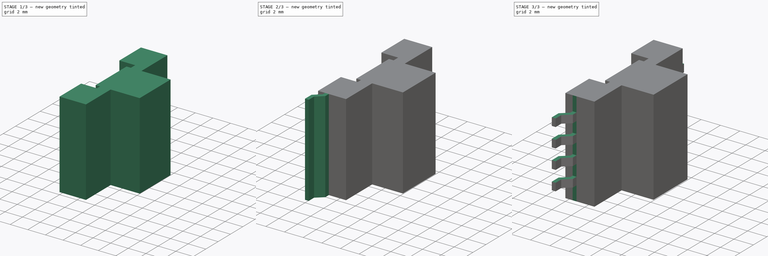
[diagram: build sequence overview — one tinted view per stage of 3, left to right]
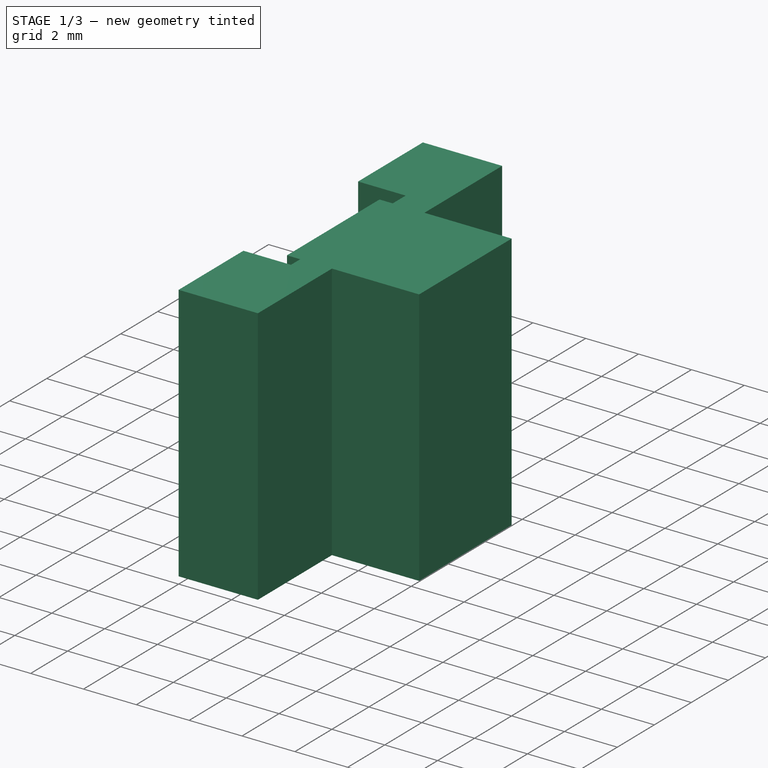
[diagram: stage 1 of 3 — iso view after this stage's code; geometry added in this stage tinted green]
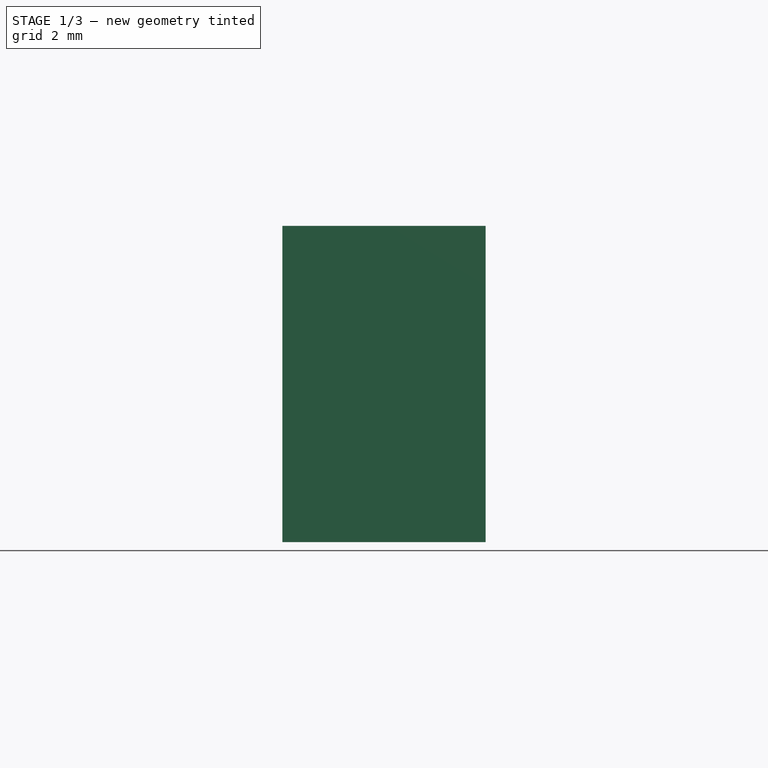
[diagram: stage 1 of 3 — front view after this stage's code; geometry added in this stage tinted green]
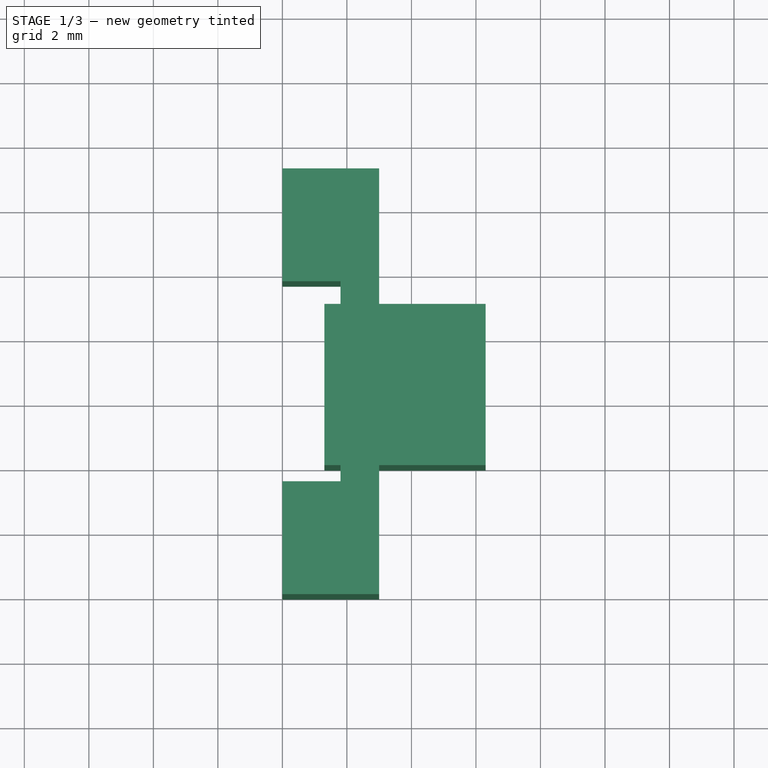
[diagram: stage 1 of 3 — top view after this stage's code; geometry added in this stage tinted green]
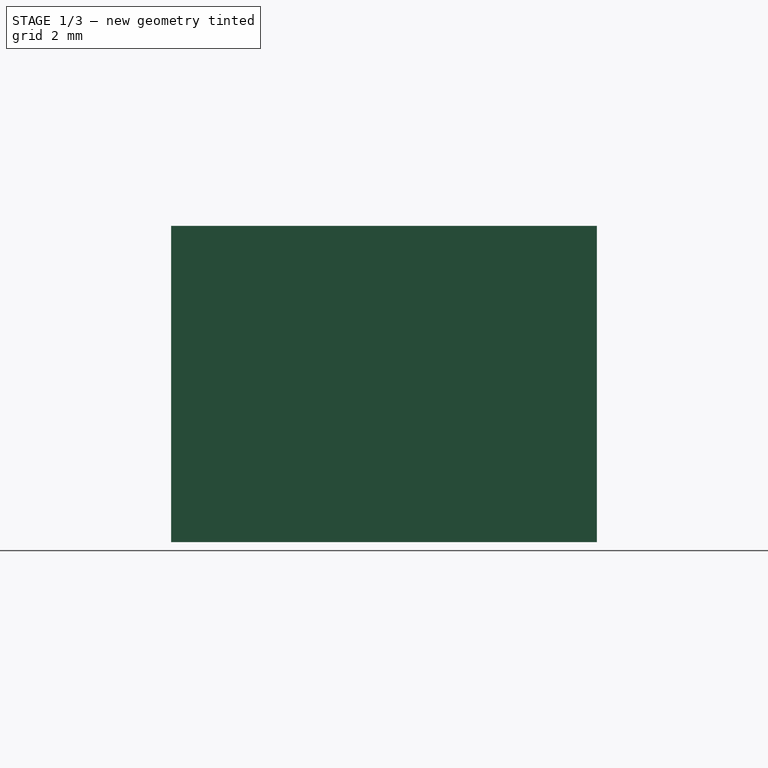
[diagram: stage 1 of 3 — right view after this stage's code; geometry added in this stage tinted green]
FCSTD DOCUMENT  (FreeCAD 1.0R39285 (Git))
Label: ZG3766-AE
License: All rights reserved
LicenseURL: https://en.wikipedia.org/wiki/All_rights_reserved
objects: Sketcher::SketchObject×4, PartDesign::Pad×3, Image::ImagePlane×1, PartDesign::Pocket×1, PartDesign::Point×1, PartDesign::Plane×1, PartDesign::Mirrored×1, PartDesign::Body×1
note: 25 computed .brp shape members not serialized (recipe doc carries the construction recipe); baked Part::Feature solids carry a one-line shape summary decoded from their .brp

FEATURE [Sketcher::SketchObject] Sketch
  ArcFitTolerance = 1e-06
  AttachmentSupport = -> [XY_Plane]
  FullyConstrained = true
  MakeInternals = false
  MapMode = 5
  sketch-geometry (5):
    g0: LineSegment StartX=1.3 StartY=11 StartZ=0 EndX=1.3 EndY=6 EndZ=0
    g1: LineSegment StartX=1.3 StartY=6 StartZ=0 EndX=6.3 EndY=6 EndZ=0
    g2: LineSegment StartX=6.3 StartY=6 StartZ=0 EndX=6.3 EndY=11 EndZ=0
    g3: LineSegment StartX=6.3 StartY=11 StartZ=0 EndX=1.3 EndY=11 EndZ=0
    g4: GeomPoint [constr] X=3.8 Y=8.5 Z=0
  constraints (13):
    c: Coincident(g0,g1)
    c: Coincident(g1,g2)
    c: Coincident(g2,g3)
    c: Coincident(g3,g0)
    c: Vertical(g0)
    c: Vertical(g2)
    c: Horizontal(g1)
    c: Horizontal(g3)
    c: Symmetric(g2,g0,g4)
    c: DistanceX(g1,g1) = 5
    c: DistanceY(g2,g2) = 5
    c: Distance(g4,g-1) = 8.5
    c: Distance(g4,g-2) = 3.8
FEATURE [Image::ImagePlane] drawing
  Placement = pos=(8.25,7.25,0) rot=(0,0,1;0rad)
  XSize = 22.6
  YSize = 21.16
FEATURE [PartDesign::Pad] Pad
  Direction = (0,0,1)
  Length = 9.8
  Length2 = 10
  Profile = -> Sketch
  ReferenceAxis = -> Sketch [N_Axis]
  Suppressed = false
  Type = 0
FEATURE [Sketcher::SketchObject] Sketch001
  ArcFitTolerance = 1e-06
  AttachmentSupport = -> [XY_Plane]
  FullyConstrained = true
  MakeInternals = false
  MapMode = 5
  sketch-geometry (8):
    g0: LineSegment StartX=0 StartY=2 StartZ=0 EndX=0 EndY=5.5 EndZ=0
    g1: LineSegment StartX=0 StartY=5.5 StartZ=0 EndX=1.8 EndY=5.5 EndZ=0
    g2: LineSegment StartX=1.8 StartY=5.5 StartZ=0 EndX=1.8 EndY=11.7 EndZ=0
    g3: LineSegment StartX=1.8 StartY=11.7 StartZ=0 EndX=0 EndY=11.7 EndZ=0
    g4: LineSegment StartX=0 StartY=11.7 StartZ=0 EndX=0 EndY=15.2 EndZ=0
    g5: LineSegment StartX=0 StartY=15.2 StartZ=0 EndX=3 EndY=15.2 EndZ=0
    g6: LineSegment StartX=3 StartY=15.2 StartZ=0 EndX=3 EndY=2 EndZ=0
    g7: LineSegment StartX=3 StartY=2 StartZ=0 EndX=0 EndY=2 EndZ=0
  constraints (24):
    c: PointOnObject(g0,g-2)
    c: PointOnObject(g0,g-2)
    c: Coincident(g0,g1)
    c: Horizontal(g1)
    c: Coincident(g1,g2)
    c: Vertical(g2)
    c: Coincident(g2,g3)
    c: PointOnObject(g3,g-2)
    c: Horizontal(g3)
    c: Coincident(g3,g4)
    c: PointOnObject(g4,g-2)
    c: Coincident(g4,g5)
    c: Horizontal(g5)
    c: Coincident(g5,g6)
    c: Vertical(g6)
    c: Coincident(g6,g7)
    c: Coincident(g7,g0)
    c: Horizontal(g7)
    c: Equal(g0,g4)
    c: DistanceX(g1,g1) = 1.8
    c: Distance(g7,g7) = 3
    c: DistanceY(g0,g0) = 3.5
    c: Distance(g-1,g7) = 2
    c: DistanceY(g6,g6) = 13.2
FEATURE [PartDesign::Pad] Pad001
  BaseFeature = -> Pad
  Direction = (0,0,1)
  Length = 9.8
  Length2 = 10
  Profile = -> Sketch001
  ReferenceAxis = -> Sketch001 [N_Axis]
  Suppressed = false
  Type = 0
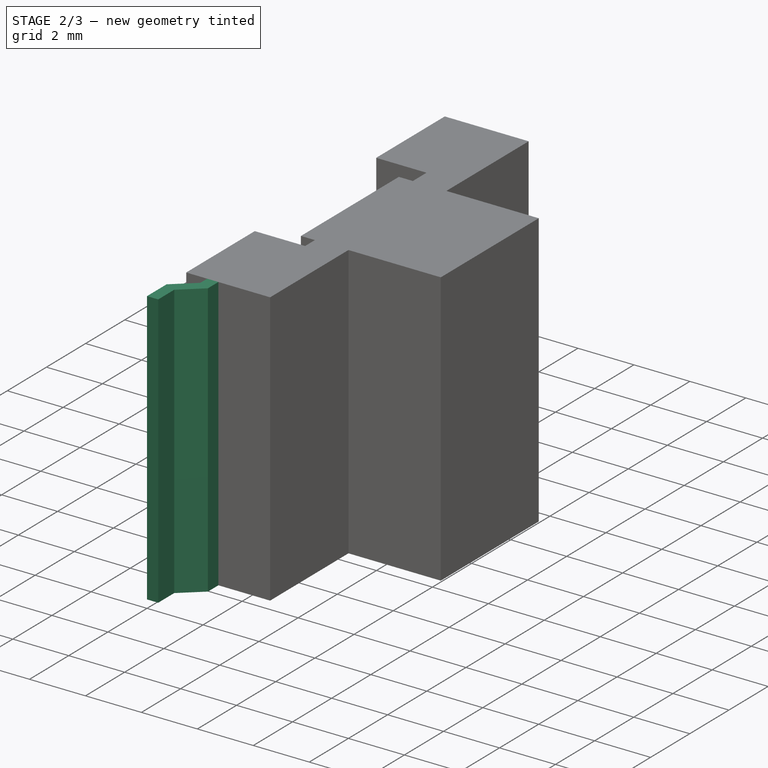
[diagram: stage 2 of 3 — iso view after this stage's code; geometry added in this stage tinted green]
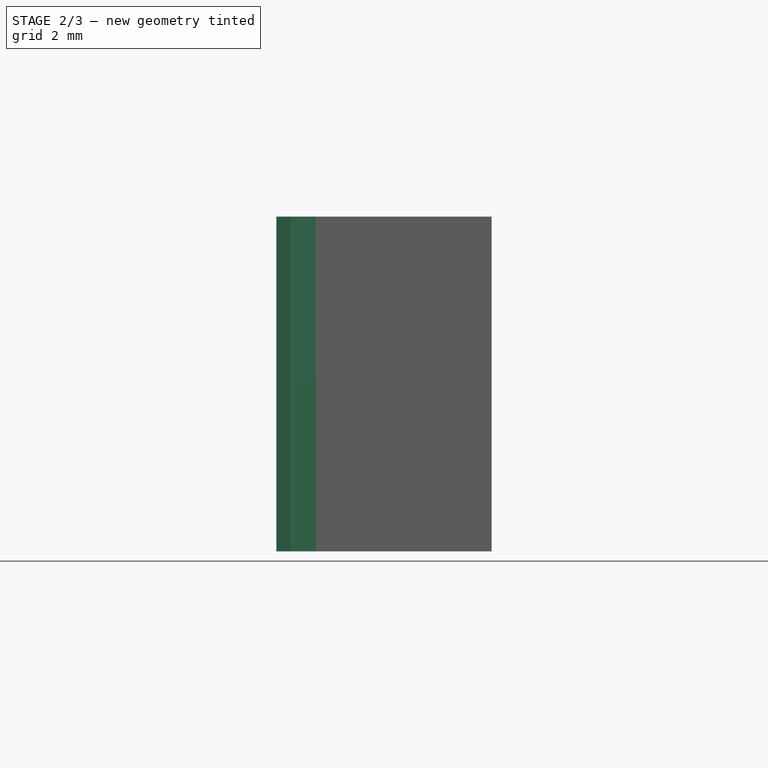
[diagram: stage 2 of 3 — front view after this stage's code; geometry added in this stage tinted green]
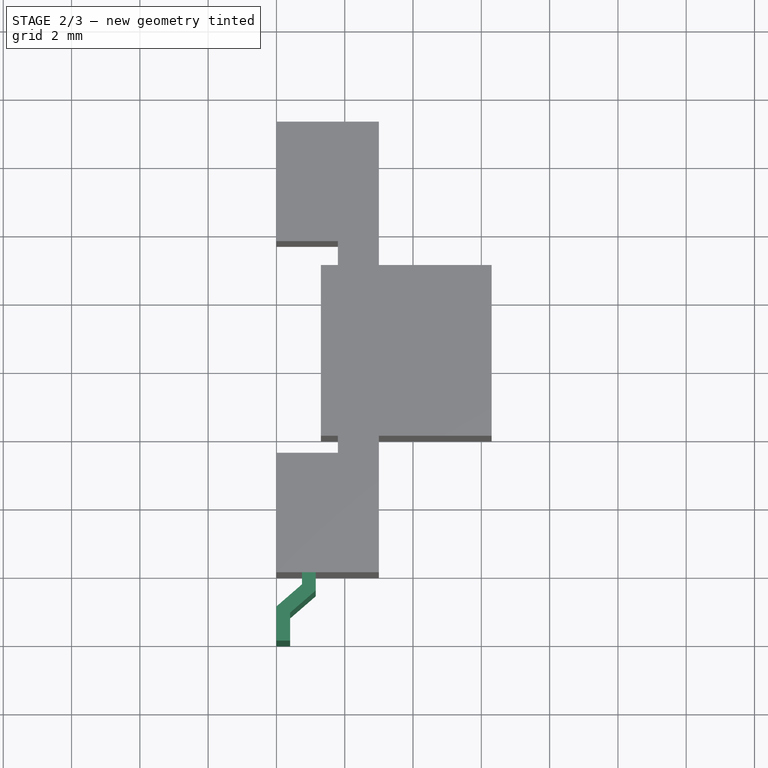
[diagram: stage 2 of 3 — top view after this stage's code; geometry added in this stage tinted green]
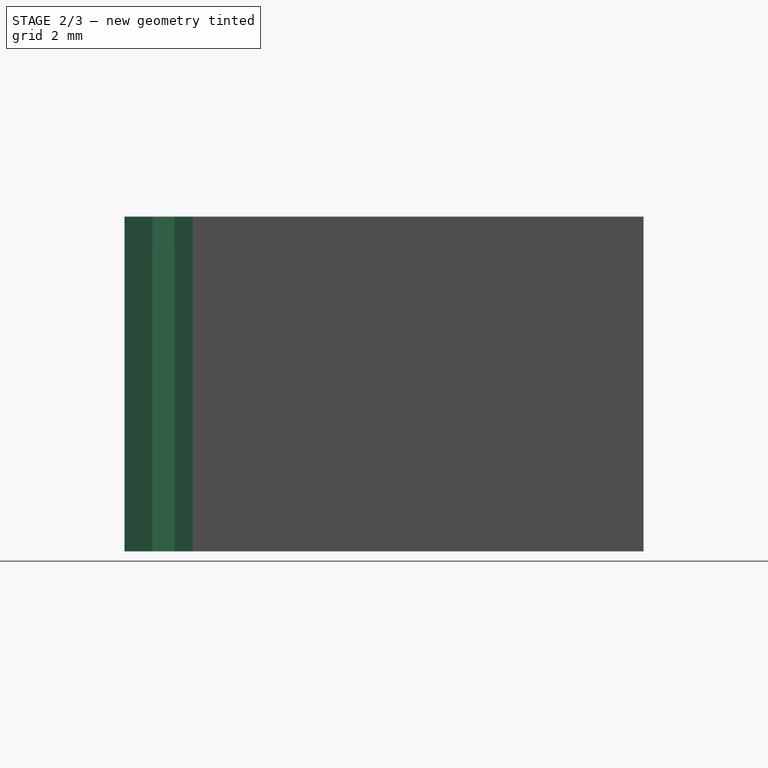
[diagram: stage 2 of 3 — right view after this stage's code; geometry added in this stage tinted green]
FEATURE [Sketcher::SketchObject] Sketch002
  ArcFitTolerance = 1e-06
  AttachmentSupport = -> [XY_Plane]
  ExternalGeometry = -> [Pad001]
  FullyConstrained = true
  MakeInternals = false
  MapMode = 5
  sketch-geometry (9):
    g0: LineSegment StartX=0 StartY=0 StartZ=0 EndX=0 EndY=1 EndZ=0
    g1: LineSegment StartX=0 StartY=1 StartZ=0 EndX=0.75 EndY=1.65 EndZ=0
    g2: LineSegment StartX=0.75 StartY=1.65 StartZ=0 EndX=0.75 EndY=2 EndZ=0
    g3: LineSegment StartX=0.75 StartY=2 StartZ=0 EndX=1.15 EndY=2 EndZ=0
    g4: LineSegment StartX=1.15 StartY=2 StartZ=0 EndX=1.15 EndY=1.46735 EndZ=0
    g5: LineSegment StartX=1.15 StartY=1.46735 StartZ=0 EndX=0.4 EndY=0.817348 EndZ=0
    g6: LineSegment StartX=0.4 StartY=0.817348 StartZ=0 EndX=0.4 EndY=0 EndZ=0
    g7: LineSegment StartX=0.4 StartY=0 StartZ=0 EndX=0 EndY=0 EndZ=0
    g8: LineSegment [constr] StartX=0.75 StartY=1.65 StartZ=0 EndX=1.01197 EndY=1.34772 EndZ=0
  constraints (26):
    c: Coincident(g-1,g0)
    c: PointOnObject(g0,g-2)
    c: Coincident(g0,g1)
    c: Coincident(g1,g2)
    c: PointOnObject(g2,g-3)
    c: Coincident(g2,g3)
    c: PointOnObject(g3,g-3)
    c: Coincident(g3,g4)
    c: Vertical(g4)
    c: Coincident(g4,g5)
    c: Coincident(g5,g6)
    c: PointOnObject(g6,g-1)
    c: Vertical(g6)
    c: Coincident(g6,g7)
    c: Coincident(g7,g0)
    c: Vertical(g2)
    c: Parallel(g1,g5)
    c: Equal(g7,g3)
    c: Distance(g7,g7) = 0.4
    c: Coincident(g8,g1)
    c: PointOnObject(g8,g5)
    c: Perpendicular(g1,g8)
    c: Distance(g-2,g2) = 0.75
    c: DistanceY(g0,g0) = 1
    c: Equal(g8,g7)
    c: DistanceY(g2,g2) = 0.35
FEATURE [PartDesign::Pad] Pad002
  BaseFeature = -> Pad001
  Direction = (0,0,1)
  Length = 9.8
  Length2 = 10
  Profile = -> Sketch002
  ReferenceAxis = -> Sketch002 [N_Axis]
  Suppressed = false
  Type = 0
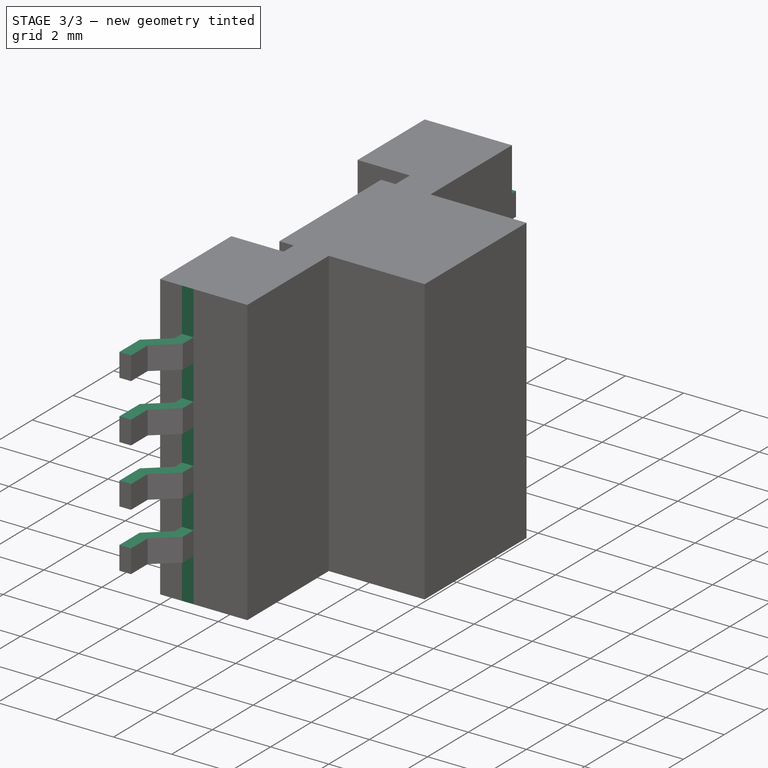
[diagram: stage 3 of 3 — iso view after this stage's code; geometry added in this stage tinted green]
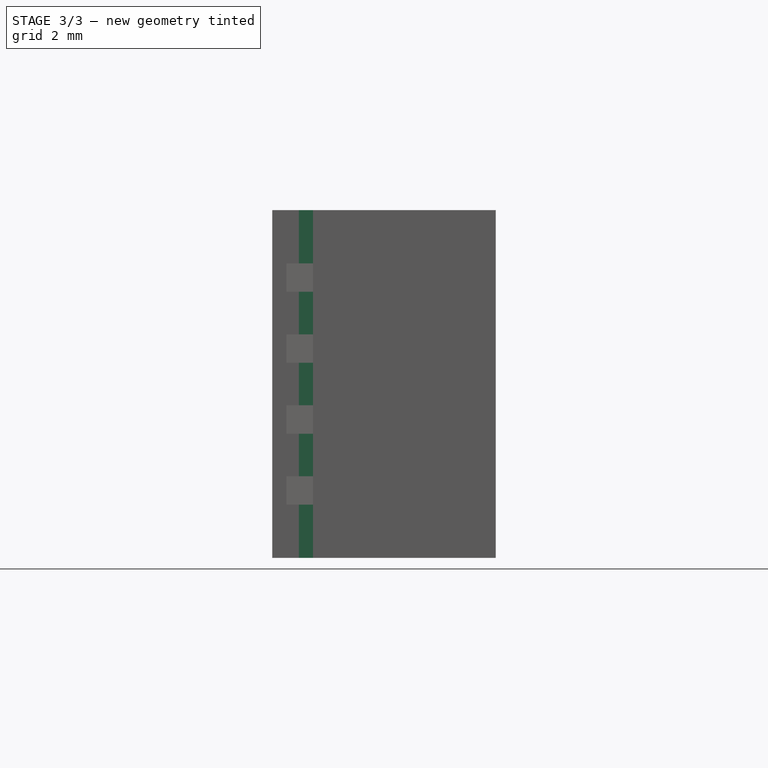
[diagram: stage 3 of 3 — front view after this stage's code; geometry added in this stage tinted green]
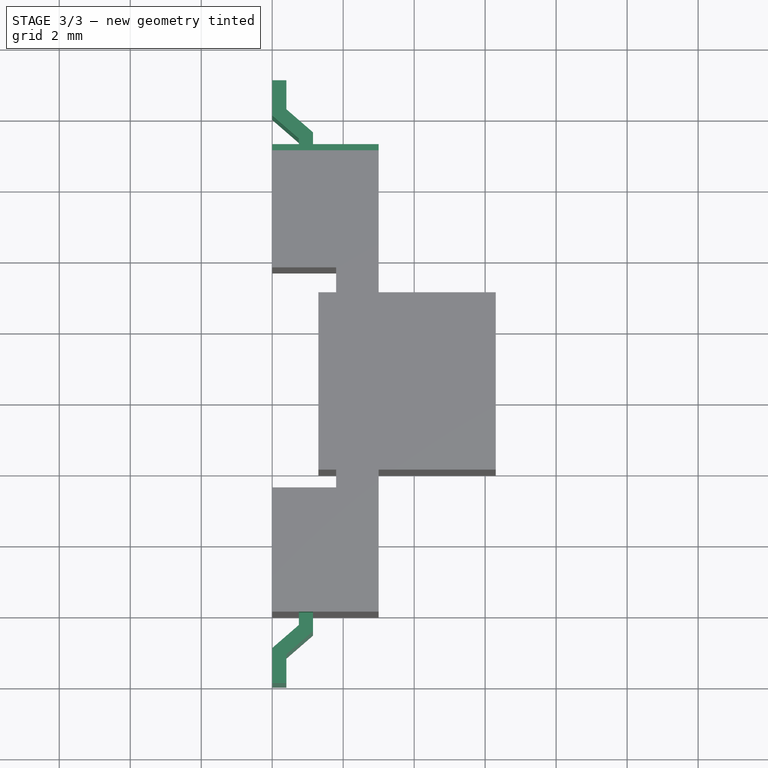
[diagram: stage 3 of 3 — top view after this stage's code; geometry added in this stage tinted green]
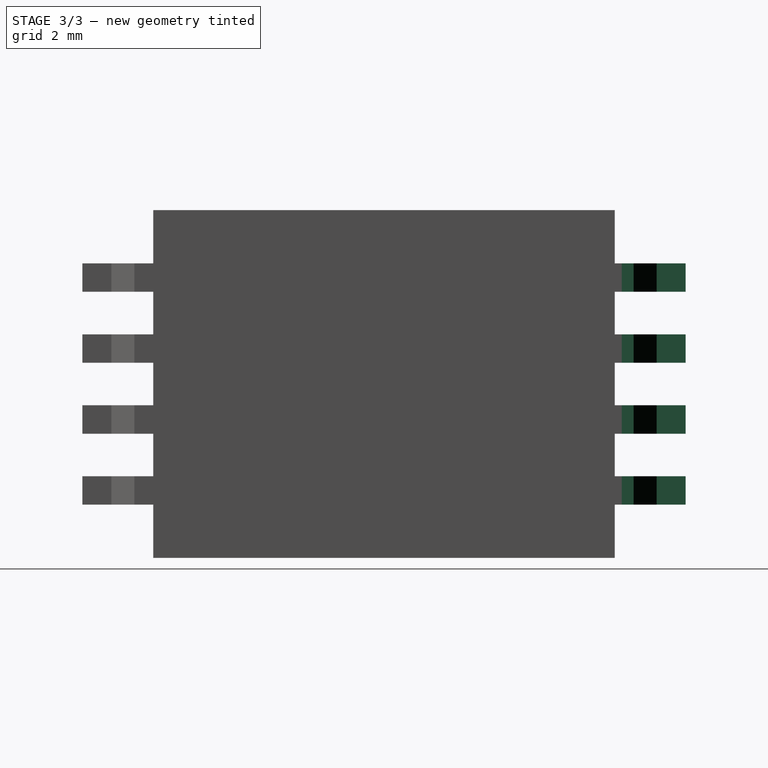
[diagram: stage 3 of 3 — right view after this stage's code; geometry added in this stage tinted green]
FEATURE [Sketcher::SketchObject] Sketch003
  ArcFitTolerance = 1e-06
  AttachmentSupport = -> [YZ_Plane]
  ExternalGeometry = -> [Pad002]
  FullyConstrained = true
  MakeInternals = false
  MapMode = 5
  Placement = pos=(0,0,0) rot=(0.57735,0.57735,0.57735;2.0944rad)
  sketch-geometry (20):
    g0: LineSegment StartX=0 StartY=0 StartZ=0 EndX=2 EndY=0 EndZ=0
    g1: LineSegment StartX=2 StartY=0 StartZ=0 EndX=2 EndY=1.5 EndZ=0
    g2: LineSegment StartX=2 StartY=1.5 StartZ=0 EndX=0 EndY=1.5 EndZ=0
    g3: LineSegment StartX=0 StartY=1.5 StartZ=0 EndX=0 EndY=0 EndZ=0
    g4: LineSegment StartX=2 StartY=2.3 StartZ=0 EndX=2 EndY=3.5 EndZ=0
    g5: LineSegment StartX=2 StartY=3.5 StartZ=0 EndX=0 EndY=3.5 EndZ=0
    g6: LineSegment StartX=0 StartY=3.5 StartZ=0 EndX=0 EndY=2.3 EndZ=0
    g7: LineSegment StartX=0 StartY=2.3 StartZ=0 EndX=2 EndY=2.3 EndZ=0
    g8: LineSegment StartX=0 StartY=4.3 StartZ=0 EndX=2 EndY=4.3 EndZ=0
    g9: LineSegment StartX=2 StartY=4.3 StartZ=0 EndX=2 EndY=5.5 EndZ=0
    g10: LineSegment StartX=2 StartY=5.5 StartZ=0 EndX=0 EndY=5.5 EndZ=0
    g11: LineSegment StartX=0 StartY=5.5 StartZ=0 EndX=0 EndY=4.3 EndZ=0
    g12: LineSegment StartX=2 StartY=6.3 StartZ=0 EndX=2 EndY=7.5 EndZ=0
    g13: LineSegment StartX=2 StartY=7.5 StartZ=0 EndX=0 EndY=7.5 EndZ=0
    g14: LineSegment StartX=0 StartY=7.5 StartZ=0 EndX=0 EndY=6.3 EndZ=0
    g15: LineSegment StartX=0 StartY=6.3 StartZ=0 EndX=2 EndY=6.3 EndZ=0
    g16: LineSegment StartX=0 StartY=8.3 StartZ=0 EndX=2 EndY=8.3 EndZ=0
    g17: LineSegment StartX=2 StartY=8.3 StartZ=0 EndX=2 EndY=9.8 EndZ=0
    g18: LineSegment StartX=2 StartY=9.8 StartZ=0 EndX=0 EndY=9.8 EndZ=0
    g19: LineSegment StartX=0 StartY=9.8 StartZ=0 EndX=0 EndY=8.3 EndZ=0
  constraints (58):
    c: Coincident(g0,g1)
    c: Coincident(g1,g2)
    c: Coincident(g2,g3)
    c: Coincident(g3,g0)
    c: Horizontal(g0)
    c: Horizontal(g2)
    c: Vertical(g1)
    c: Vertical(g3)
    c: Coincident(g0,g-1)
    c: PointOnObject(g1,g-3)
    c: Coincident(g4,g5)
    c: Coincident(g5,g6)
    c: Coincident(g6,g7)
    c: Coincident(g7,g4)
    c: Vertical(g4)
    c: Vertical(g6)
    c: Horizontal(g5)
    c: Horizontal(g7)
    c: PointOnObject(g4,g-3)
    c: PointOnObject(g5,g-4)
    c: Coincident(g8,g9)
    c: Coincident(g9,g10)
    c: Coincident(g10,g11)
    c: Coincident(g11,g8)
    c: Horizontal(g8)
    c: Horizontal(g10)
    c: Vertical(g9)
    c: Vertical(g11)
    c: PointOnObject(g8,g-4)
    c: PointOnObject(g9,g-3)
    c: Coincident(g12,g13)
    c: Coincident(g13,g14)
    c: Coincident(g14,g15)
    c: Coincident(g15,g12)
    c: Vertical(g12)
    c: Vertical(g14)
    c: Horizontal(g13)
    c: Horizontal(g15)
    c: PointOnObject(g12,g-3)
    c: PointOnObject(g13,g-4)
    c: Coincident(g16,g17)
    c: Coincident(g17,g18)
    c: Coincident(g18,g19)
    c: Coincident(g19,g16)
    c: Horizontal(g16)
    c: Horizontal(g18)
    c: Vertical(g17)
    c: Vertical(g19)
    c: PointOnObject(g16,g-4)
    c: Coincident(g17,g-3)
    c: Equal(g12,g9)
    c: Equal(g9,g4)
    c: Distance(g1,g4) = 0.8
    c: Distance(g4,g8) = 0.8
    c: DistanceY(g9,g12) = 0.8
    c: Distance(g12,g16) = 0.8
    c: Equal(g17,g1)
    c: DistanceY(g12,g16) = 2
FEATURE [PartDesign::Pocket] Pocket
  BaseFeature = -> Pad002
  Direction = (-1,0,0)
  Length = 5
  Length2 = 5
  Profile = -> Sketch003
  ReferenceAxis = -> Sketch003 [N_Axis]
  Reversed = true
  Suppressed = false
  Type = 0
FEATURE [PartDesign::Point] DatumPoint
  AttacherType = Attacher::AttachEnginePoint
  AttachmentSupport = -> [Pocket]
  MapMode = 37
  Placement = pos=(6.3,8.5,9.8) rot=(0,0,1;0rad)
FEATURE [PartDesign::Plane] DatumPlane
  AttachmentSupport = -> [DatumPoint,Pocket]
  Length = 60
  MapMode = 6
  Placement = pos=(6.3,8.5,9.8) rot=(1,0,0;1.5708rad)
  ResizeMode = 0
  Width = 60
FEATURE [PartDesign::Mirrored] Mirrored
  BaseFeature = -> Pocket
  MirrorPlane = -> DatumPlane
  Originals = -> [Pad002,Pocket]
  Suppressed = false
  TransformMode = 0
FEATURE [PartDesign::Body] Body
  AllowCompound = false
  Group = -> [Sketch,Pad,Sketch001,Pad001,Sketch002,Pad002,Sketch003,Pocket,DatumPoint,DatumPlane,Mirrored]
  Origin = -> Origin
  Tip = -> Mirrored
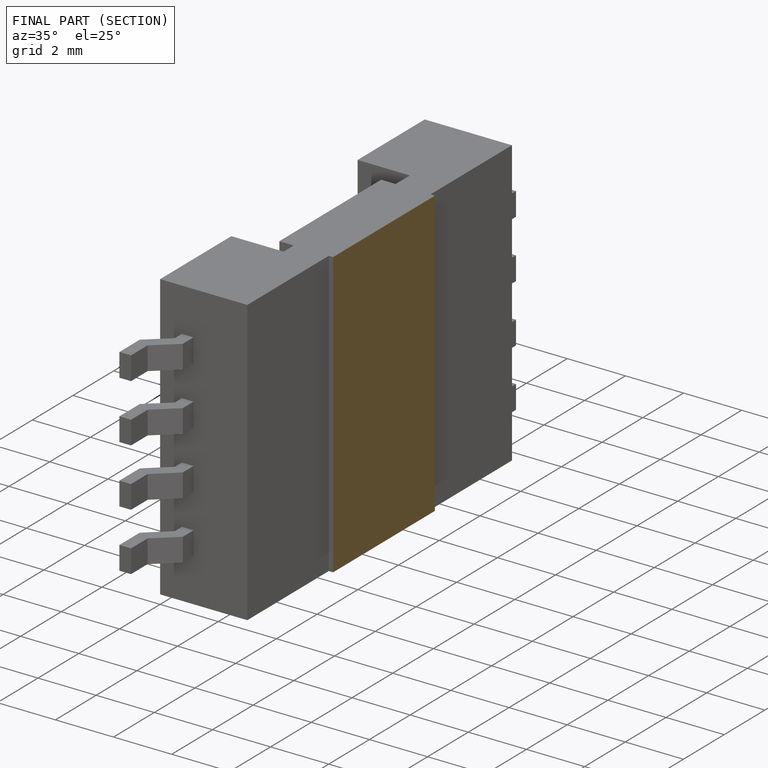
[diagram: finished part — half-section view (interior)]
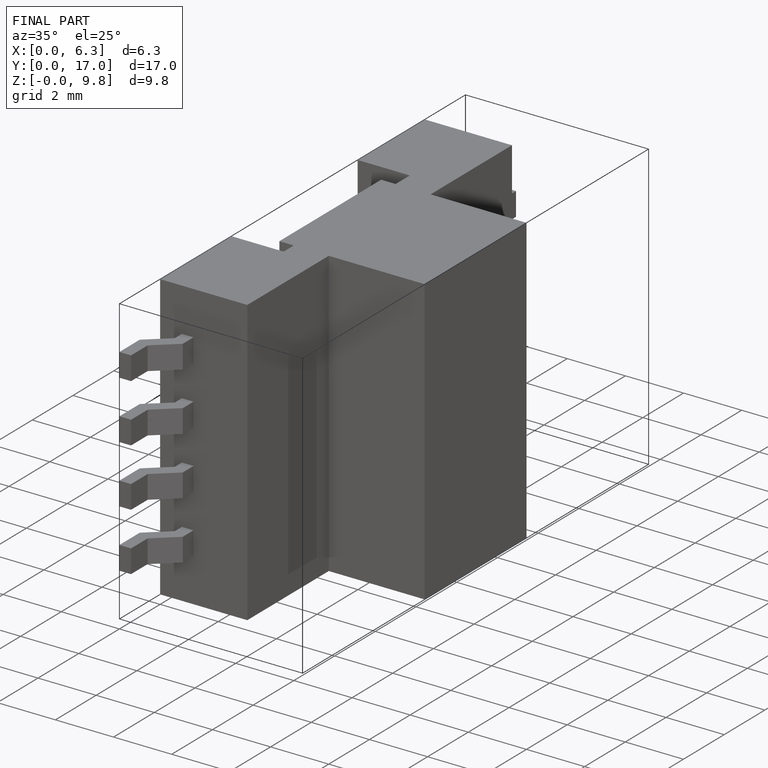
[diagram: finished part — iso view with bounding-box wireframe]
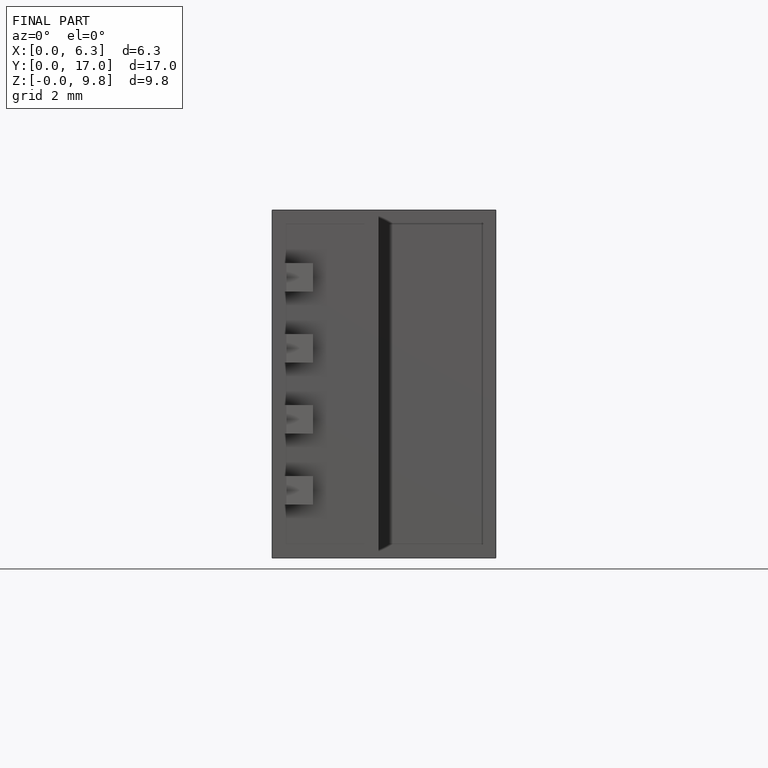
[diagram: finished part — front view with bounding-box wireframe]
